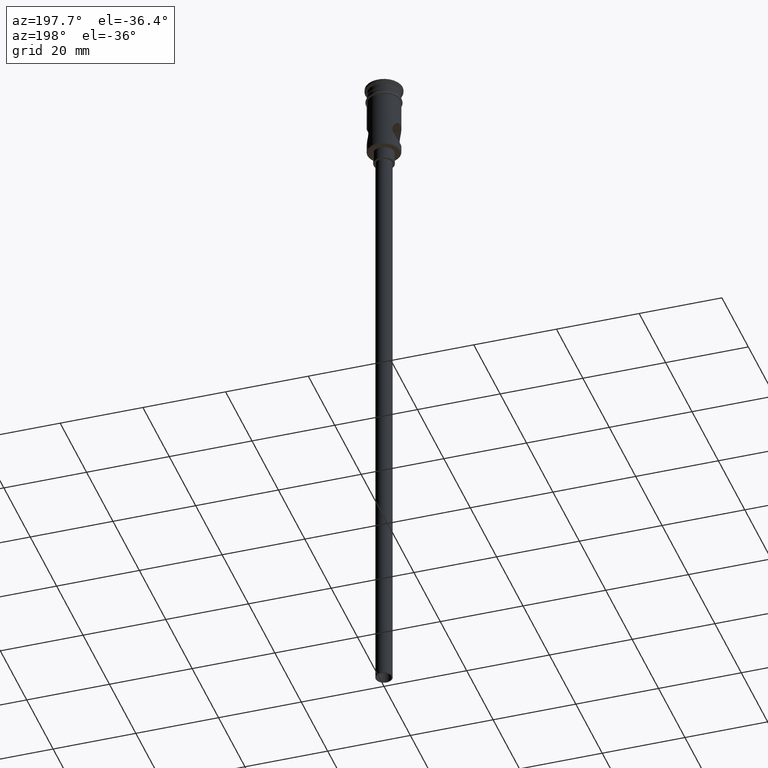
[diagram: clean part render]
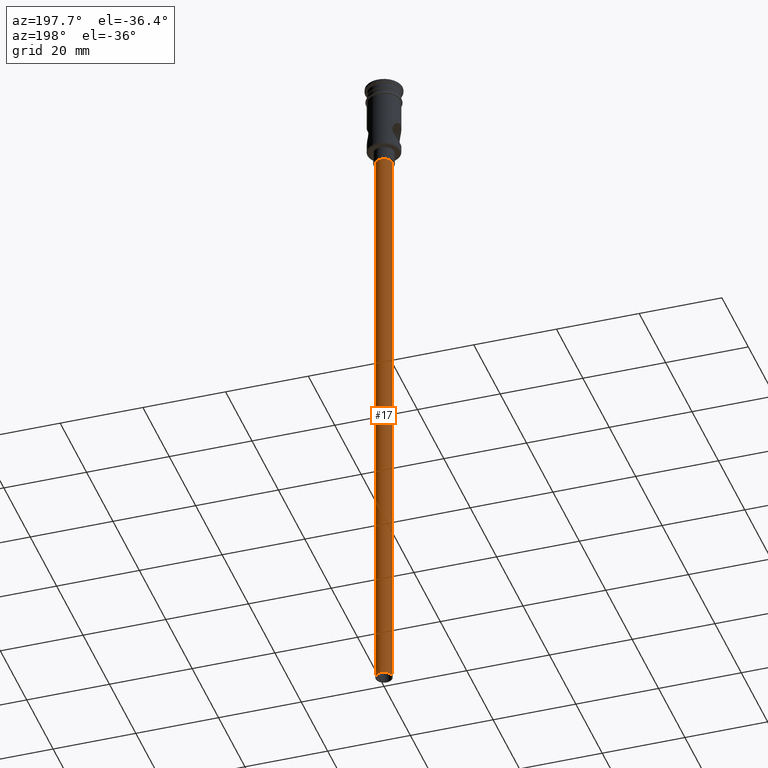
[diagram: same view with one face highlighted and labeled with its STEP entity id]
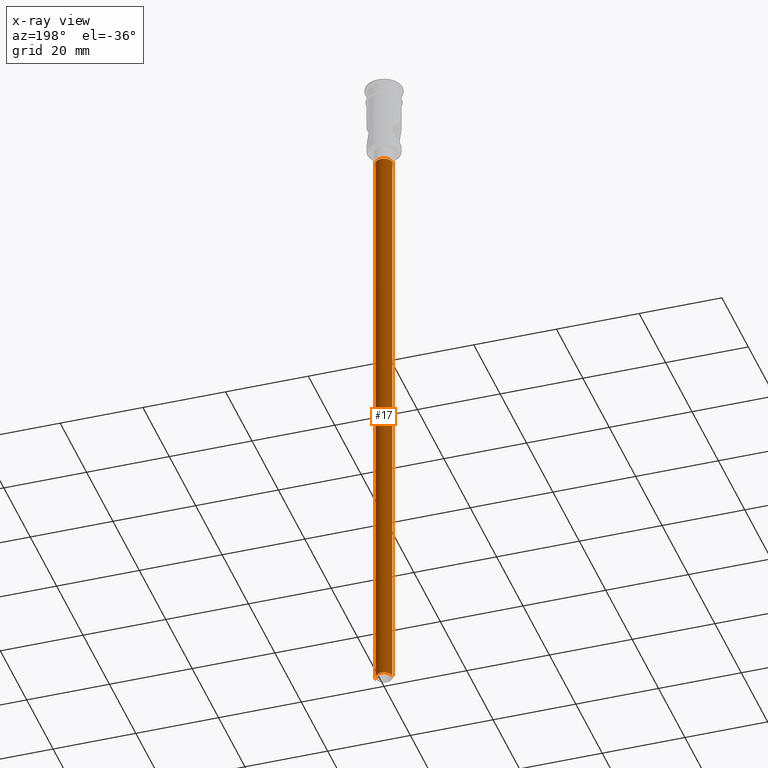
[diagram: x-ray of the same camera — body ghosted, the highlighted face saturated]
A machine part, auxiliary view. The second image highlights one B-rep face of the part: STEP entity #17.
The next image is the same camera in x-ray: the body ghosted, the highlighted face saturated — about 0% of this face is hidden behind the body in this view.
In plain terms, the highlighted cylindrical surface (edge-blend (fillet) strip) has radius 2 mm, axis along (-0, -0, 1).
Its self-contained STEP definition (entity closure, byte-faithful):
#3 = LINE ( 'NONE', #667, #1077 ) ;
#17 = ADVANCED_FACE ( 'NONE', ( #904 ), #347, .T. ) ;
#73 = VECTOR ( 'NONE', #421, 1000.000000000000000 ) ;
#138 = VERTEX_POINT ( 'NONE', #833 ) ;
#209 = DIRECTION ( 'NONE',  ( 0.000000000000000000, 0.000000000000000000, -1.000000000000000000 ) ) ;
#227 = LINE ( 'NONE', #1117, #73 ) ;
#231 = DIRECTION ( 'NONE',  ( -0.000000000000000000, -0.000000000000000000, 1.000000000000000000 ) ) ;
#238 = AXIS2_PLACEMENT_3D ( 'NONE', #749, #960, #953 ) ;
#280 = VERTEX_POINT ( 'NONE', #733 ) ;
#347 = CYLINDRICAL_SURFACE ( 'NONE', #402, 2.000000000000000000 ) ;
#398 = EDGE_CURVE ( 'NONE', #280, #1217, #3, .T. ) ;
#402 = AXIS2_PLACEMENT_3D ( 'NONE', #673, #231, #910 ) ;
#421 = DIRECTION ( 'NONE',  ( -0.000000000000000000, -0.000000000000000000, 1.000000000000000000 ) ) ;
#427 = ORIENTED_EDGE ( 'NONE', *, *, #398, .T. ) ;
#650 = EDGE_CURVE ( 'NONE', #280, #138, #1303, .T. ) ;
#667 = CARTESIAN_POINT ( 'NONE',  ( -2.000000000000000000, 2.449293598294706414E-16, -167.9999999999999716 ) ) ;
#673 = CARTESIAN_POINT ( 'NONE',  ( 0.000000000000000000, 0.000000000000000000, -167.9999999999999716 ) ) ;
#679 = ORIENTED_EDGE ( 'NONE', *, *, #1245, .F. ) ;
#728 = AXIS2_PLACEMENT_3D ( 'NONE', #1435, #209, #1095 ) ;
#733 = CARTESIAN_POINT ( 'NONE',  ( -2.000000000000000000, 2.449293598294706414E-16, -167.9999999999999716 ) ) ;
#743 = EDGE_CURVE ( 'NONE', #1217, #800, #992, .T. ) ;
#749 = CARTESIAN_POINT ( 'NONE',  ( 0.000000000000000000, 0.000000000000000000, -167.9999999999999716 ) ) ;
#800 = VERTEX_POINT ( 'NONE', #1421 ) ;
#833 = CARTESIAN_POINT ( 'NONE',  ( 2.000000000000000000, 0.000000000000000000, -167.9999999999999716 ) ) ;
#904 = FACE_OUTER_BOUND ( 'NONE', #1250, .T. ) ;
#910 = DIRECTION ( 'NONE',  ( 1.000000000000000000, 0.000000000000000000, 0.000000000000000000 ) ) ;
#953 = DIRECTION ( 'NONE',  ( -1.000000000000000000, 0.000000000000000000, 0.000000000000000000 ) ) ;
#960 = DIRECTION ( 'NONE',  ( 0.000000000000000000, 0.000000000000000000, -1.000000000000000000 ) ) ;
#992 = CIRCLE ( 'NONE', #728, 2.000000000000000000 ) ;
#1077 = VECTOR ( 'NONE', #1335, 1000.000000000000000 ) ;
#1090 = ORIENTED_EDGE ( 'NONE', *, *, #650, .F. ) ;
#1095 = DIRECTION ( 'NONE',  ( -1.000000000000000000, 0.000000000000000000, 0.000000000000000000 ) ) ;
#1117 = CARTESIAN_POINT ( 'NONE',  ( 2.000000000000000000, 0.000000000000000000, -167.9999999999999716 ) ) ;
#1217 = VERTEX_POINT ( 'NONE', #1326 ) ;
#1245 = EDGE_CURVE ( 'NONE', #138, #800, #227, .T. ) ;
#1250 = EDGE_LOOP ( 'NONE', ( #1090, #427, #1294, #679 ) ) ;
#1294 = ORIENTED_EDGE ( 'NONE', *, *, #743, .T. ) ;
#1303 = CIRCLE ( 'NONE', #238, 2.000000000000000000 ) ;
#1326 = CARTESIAN_POINT ( 'NONE',  ( -2.000000000000000000, 2.449293598294706414E-16, -20.99999999999999645 ) ) ;
#1335 = DIRECTION ( 'NONE',  ( -0.000000000000000000, -0.000000000000000000, 1.000000000000000000 ) ) ;
#1421 = CARTESIAN_POINT ( 'NONE',  ( 2.000000000000000000, 0.000000000000000000, -20.99999999999999645 ) ) ;
#1435 = CARTESIAN_POINT ( 'NONE',  ( 0.000000000000000000, 0.000000000000000000, -20.99999999999999645 ) ) ;